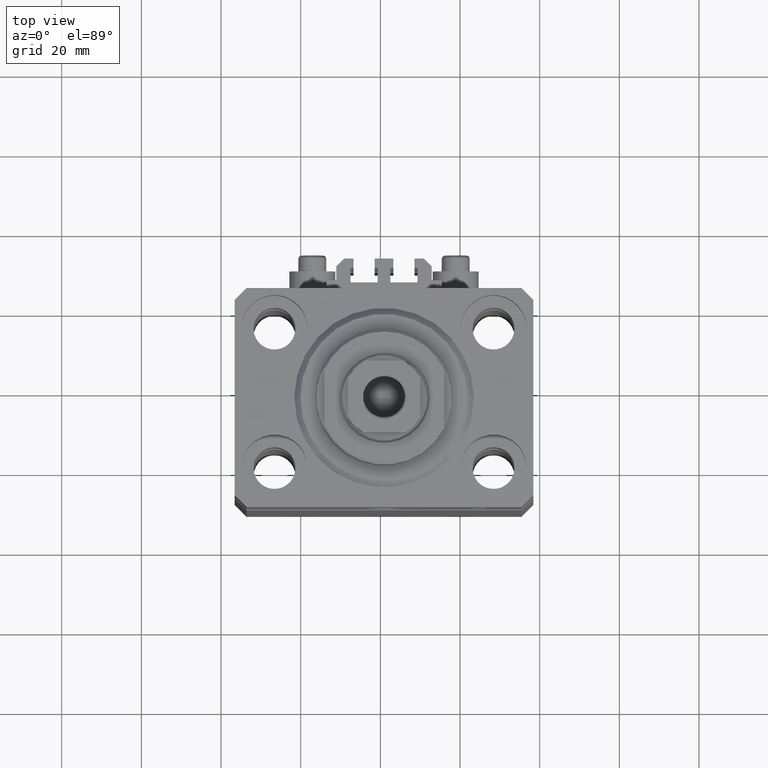
[diagram: clean part render]
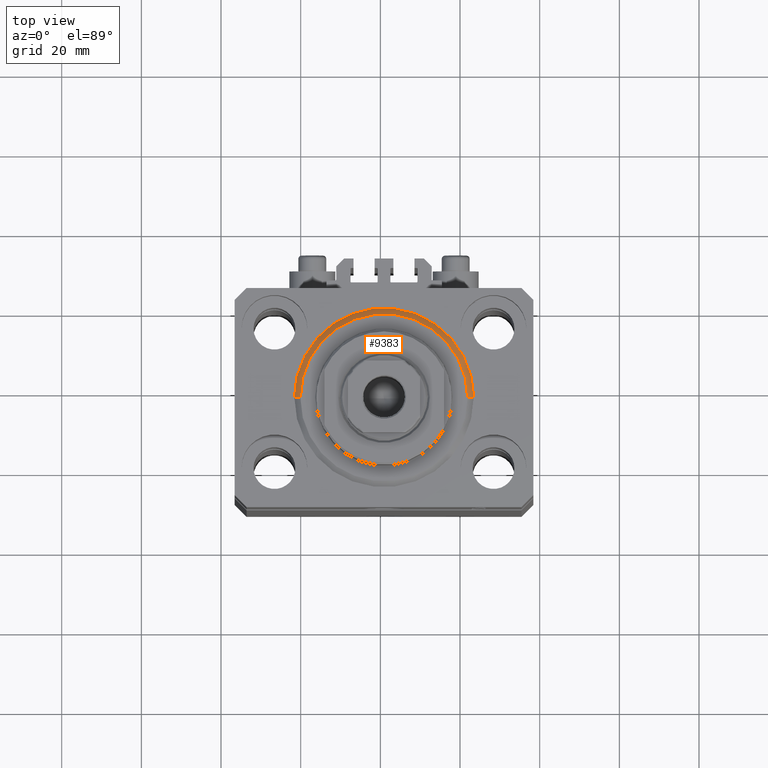
[diagram: same view with one face highlighted and labeled with its STEP entity id]
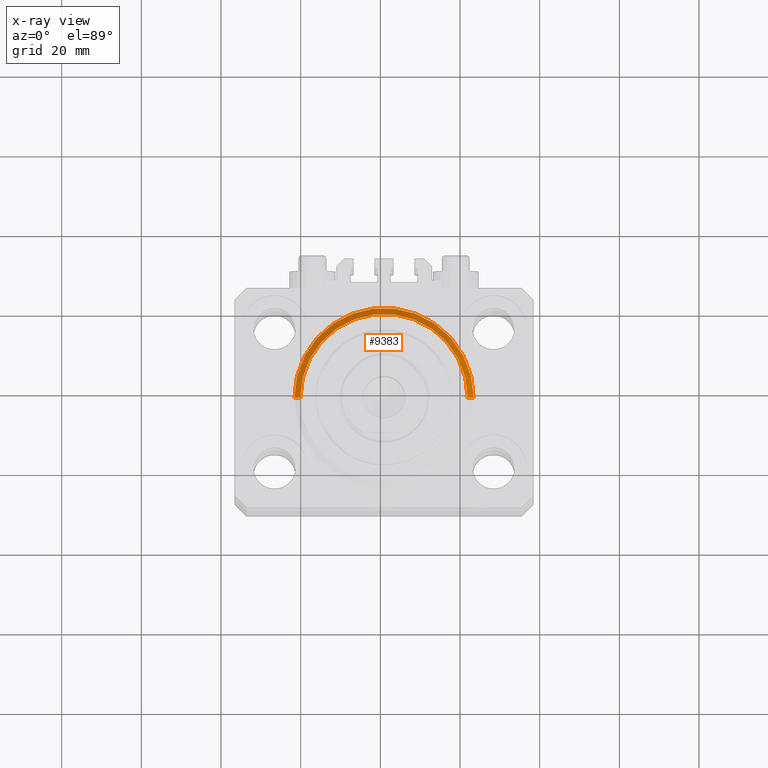
[diagram: x-ray of the same camera — body ghosted, the highlighted face saturated]
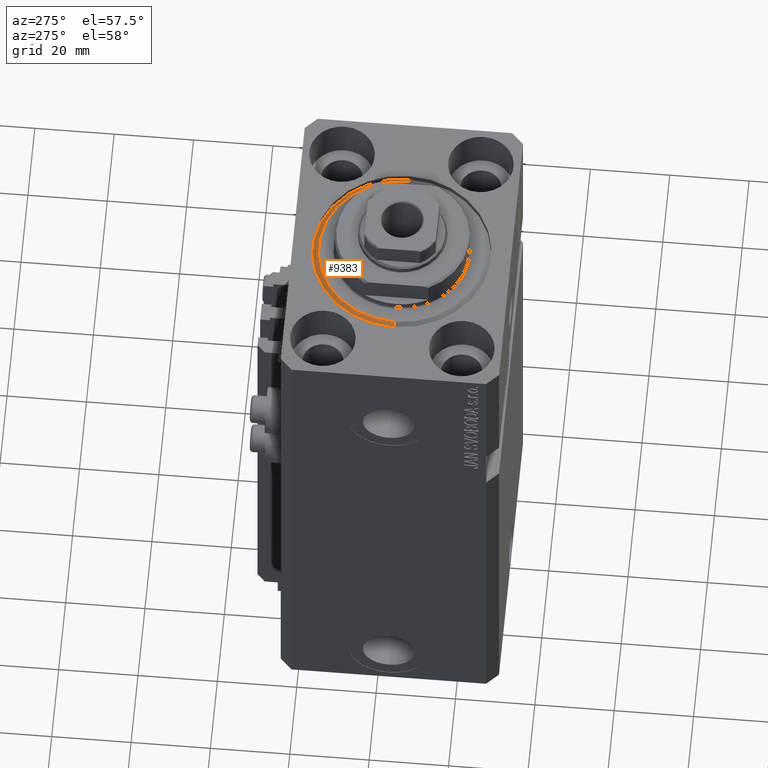
[diagram: same view with one face highlighted and labeled with its STEP entity id]
A machine part, top view. The second image highlights one B-rep face of the part: STEP entity #9383.
The next image is the same camera in x-ray: the body ghosted, the highlighted face saturated — about 0% of this face is hidden behind the body in this view.
A second angle (auxiliary view) of the same face is appended — the face is thin or edge-on in the first view.
In plain terms, the highlighted conical surface has half-angle 45 deg.
Its self-contained STEP definition (entity closure, byte-faithful):
#415 = DIRECTION ( 'NONE',  ( -0.000000000000000000, -0.000000000000000000, -1.000000000000000000 ) ) ;
#657 = CARTESIAN_POINT ( 'NONE',  ( -20.99999999999995381, 2.663606788145490261E-15, 0.000000000000000000 ) ) ;
#3279 = ORIENTED_EDGE ( 'NONE', *, *, #46603, .T. ) ;
#3395 = ORIENTED_EDGE ( 'NONE', *, *, #20823, .F. ) ;
#3890 = VERTEX_POINT ( 'NONE', #14944 ) ;
#9383 = ADVANCED_FACE ( 'NONE', ( #42394 ), #12559, .T. ) ;
#9974 = DIRECTION ( 'NONE',  ( -0.000000000000000000, -0.000000000000000000, 1.000000000000000000 ) ) ;
#10884 = CARTESIAN_POINT ( 'NONE',  ( 22.50000000000000355, 0.000000000000000000, 1.500000000000039524 ) ) ;
#12521 = ORIENTED_EDGE ( 'NONE', *, *, #23305, .F. ) ;
#12559 = CONICAL_SURFACE ( 'NONE', #40503, 22.50000000000000355, 0.7853981633974517207 ) ;
#13115 = CIRCLE ( 'NONE', #35765, 22.50000000000000355 ) ;
#13337 = CARTESIAN_POINT ( 'NONE',  ( 0.000000000000000000, 0.000000000000000000, 1.500000000000039524 ) ) ;
#14375 = EDGE_LOOP ( 'NONE', ( #3395, #3279, #12521, #37724 ) ) ;
#14944 = CARTESIAN_POINT ( 'NONE',  ( 20.99999999999995381, 0.000000000000000000, 0.000000000000000000 ) ) ;
#15371 = DIRECTION ( 'NONE',  ( 0.7071067811865500152, 0.000000000000000000, 0.7071067811865451302 ) ) ;
#18187 = DIRECTION ( 'NONE',  ( 1.000000000000000000, 0.000000000000000000, 0.000000000000000000 ) ) ;
#18709 = CARTESIAN_POINT ( 'NONE',  ( -22.50000000000000355, 2.755455298081545172E-15, 1.500000000000039524 ) ) ;
#18939 = LINE ( 'NONE', #18709, #24095 ) ;
#20401 = CARTESIAN_POINT ( 'NONE',  ( 0.000000000000000000, 0.000000000000000000, 1.500000000000039524 ) ) ;
#20823 = EDGE_CURVE ( 'NONE', #34530, #3890, #42493, .T. ) ;
#22468 = LINE ( 'NONE', #10884, #44835 ) ;
#22982 = VERTEX_POINT ( 'NONE', #28037 ) ;
#23305 = EDGE_CURVE ( 'NONE', #39344, #22982, #13115, .T. ) ;
#23649 = EDGE_CURVE ( 'NONE', #3890, #39344, #22468, .T. ) ;
#24095 = VECTOR ( 'NONE', #40000, 1000.000000000000114 ) ;
#28037 = CARTESIAN_POINT ( 'NONE',  ( -22.50000000000000355, 0.000000000000000000, 1.500000000000039524 ) ) ;
#28184 = DIRECTION ( 'NONE',  ( 1.000000000000000000, 0.000000000000000000, 0.000000000000000000 ) ) ;
#29929 = CARTESIAN_POINT ( 'NONE',  ( 22.50000000000000355, 2.755455298081544383E-15, 1.500000000000039524 ) ) ;
#31299 = DIRECTION ( 'NONE',  ( 1.000000000000000000, 0.000000000000000000, 0.000000000000000000 ) ) ;
#34530 = VERTEX_POINT ( 'NONE', #657 ) ;
#35765 = AXIS2_PLACEMENT_3D ( 'NONE', #13337, #45746, #31299 ) ;
#37207 = AXIS2_PLACEMENT_3D ( 'NONE', #46825, #415, #18187 ) ;
#37724 = ORIENTED_EDGE ( 'NONE', *, *, #23649, .F. ) ;
#39344 = VERTEX_POINT ( 'NONE', #29929 ) ;
#40000 = DIRECTION ( 'NONE',  ( -0.7071067811865500152, 8.659560562354962440E-17, 0.7071067811865451302 ) ) ;
#40503 = AXIS2_PLACEMENT_3D ( 'NONE', #20401, #9974, #28184 ) ;
#42394 = FACE_OUTER_BOUND ( 'NONE', #14375, .T. ) ;
#42493 = CIRCLE ( 'NONE', #37207, 20.99999999999995381 ) ;
#44835 = VECTOR ( 'NONE', #15371, 1000.000000000000114 ) ;
#45746 = DIRECTION ( 'NONE',  ( -0.000000000000000000, -0.000000000000000000, 1.000000000000000000 ) ) ;
#46603 = EDGE_CURVE ( 'NONE', #34530, #22982, #18939, .T. ) ;
#46825 = CARTESIAN_POINT ( 'NONE',  ( 0.000000000000000000, 0.000000000000000000, 0.000000000000000000 ) ) ;